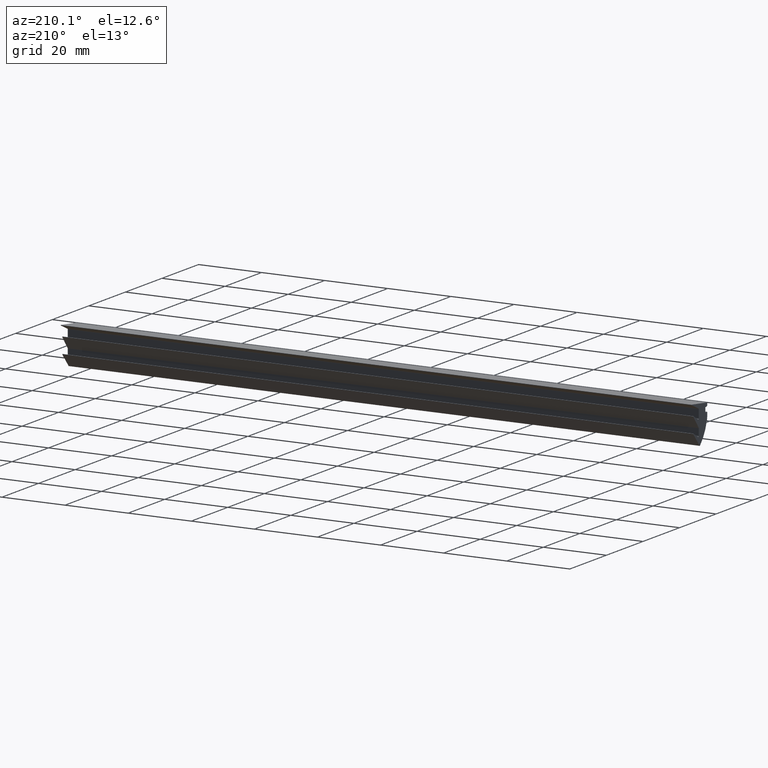
[diagram: clean part render]
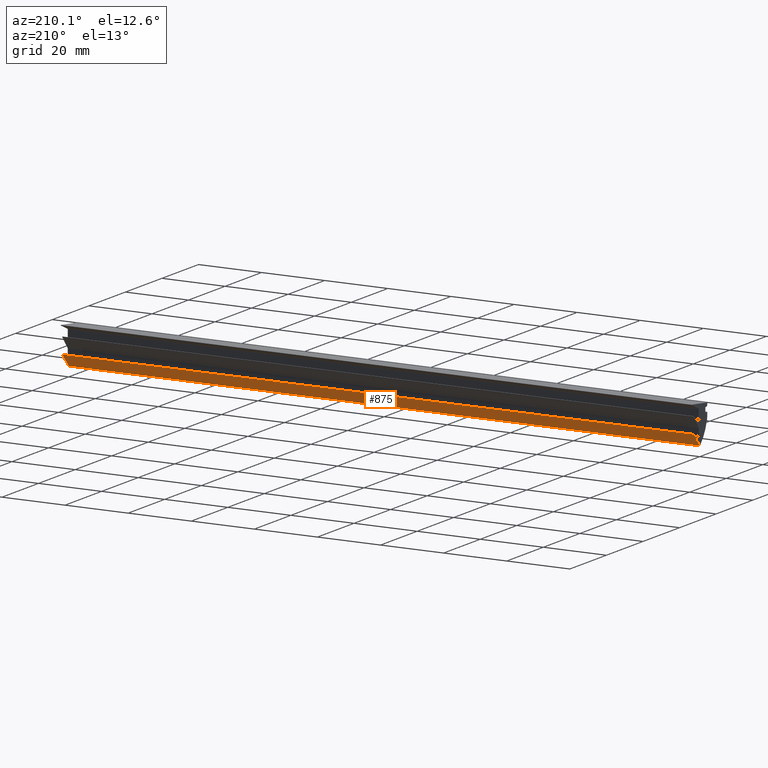
[diagram: same view with one face highlighted and labeled with its STEP entity id]
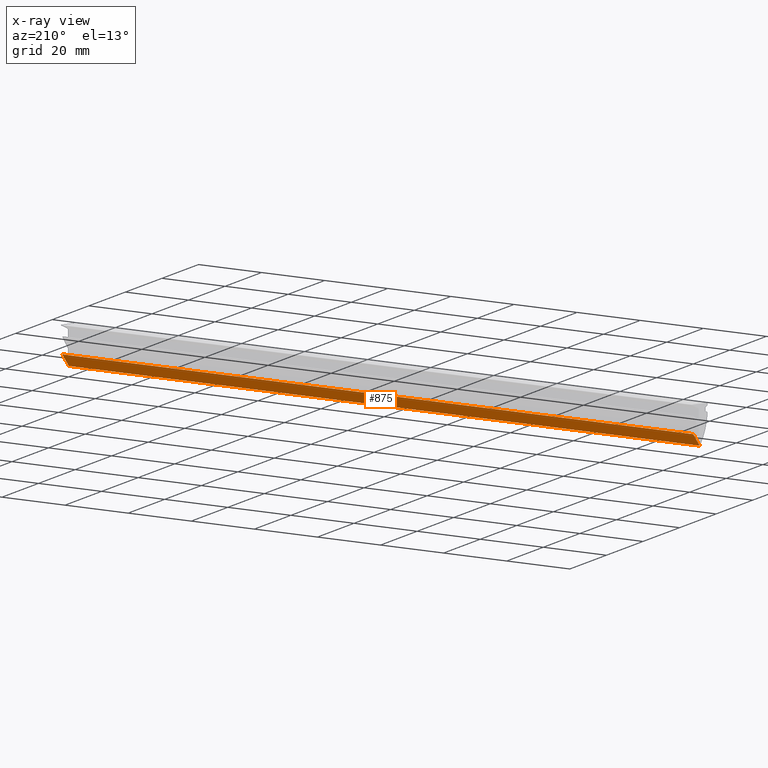
[diagram: x-ray of the same camera — body ghosted, the highlighted face saturated]
A machine part, auxiliary view. The second image highlights one B-rep face of the part: STEP entity #875.
The next image is the same camera in x-ray: the body ghosted, the highlighted face saturated — about 0% of this face is hidden behind the body in this view.
In plain terms, the highlighted planar face has unit normal (0, 0.7467, -0.6652).
Its self-contained STEP definition (entity closure, byte-faithful):
#817=CARTESIAN_POINT('',(0.0,3.470100011703124,3.895254117781587));
#818=VERTEX_POINT('',#817);
#827=CARTESIAN_POINT('',(200.0,3.470100011703124,3.895254117781587));
#828=VERTEX_POINT('',#827);
#836=CARTESIAN_POINT('',(200.0,3.470100011703124,3.895254117781587));
#837=DIRECTION('',(-1.0,0.0,0.0));
#838=VECTOR('',#837,200.0);
#839=LINE('',#836,#838);
#840=EDGE_CURVE('',#828,#818,#839,.T.);
#845=CARTESIAN_POINT('',(210.0,3.643605012288280,4.090016823670666));
#846=DIRECTION('',(0.0,0.746680531138321,-0.665182820297545));
#847=DIRECTION('',(0.0,-0.665182820297545,-0.746680531138321));
#848=AXIS2_PLACEMENT_3D('',#845,#846,#847);
#849=PLANE('',#848);
#850=CARTESIAN_POINT('',(0.0,-7.105427E-015,7.105427E-015));
#851=VERTEX_POINT('',#850);
#852=CARTESIAN_POINT('',(0.0,3.470100011703124,3.895254117781587));
#853=DIRECTION('',(0.0,-0.665182820297545,-0.746680531138320));
#854=VECTOR('',#853,5.216761326083112);
#855=LINE('',#852,#854);
#856=EDGE_CURVE('',#818,#851,#855,.T.);
#857=ORIENTED_EDGE('',*,*,#856,.F.);
#858=ORIENTED_EDGE('',*,*,#840,.F.);
#859=CARTESIAN_POINT('',(200.0,-7.105427E-015,7.105427E-015));
#860=VERTEX_POINT('',#859);
#861=CARTESIAN_POINT('',(200.0,3.470100011703124,3.895254117781587));
#862=DIRECTION('',(0.0,-0.665182820297545,-0.746680531138320));
#863=VECTOR('',#862,5.216761326083112);
#864=LINE('',#861,#863);
#865=EDGE_CURVE('',#828,#860,#864,.T.);
#866=ORIENTED_EDGE('',*,*,#865,.T.);
#867=CARTESIAN_POINT('',(200.0,-7.105427E-015,7.105427E-015));
#868=DIRECTION('',(-1.0,0.0,0.0));
#869=VECTOR('',#868,200.0);
#870=LINE('',#867,#869);
#871=EDGE_CURVE('',#860,#851,#870,.T.);
#872=ORIENTED_EDGE('',*,*,#871,.T.);
#873=EDGE_LOOP('',(#857,#858,#866,#872));
#874=FACE_OUTER_BOUND('',#873,.T.);
#875=ADVANCED_FACE('',(#874),#849,.T.);